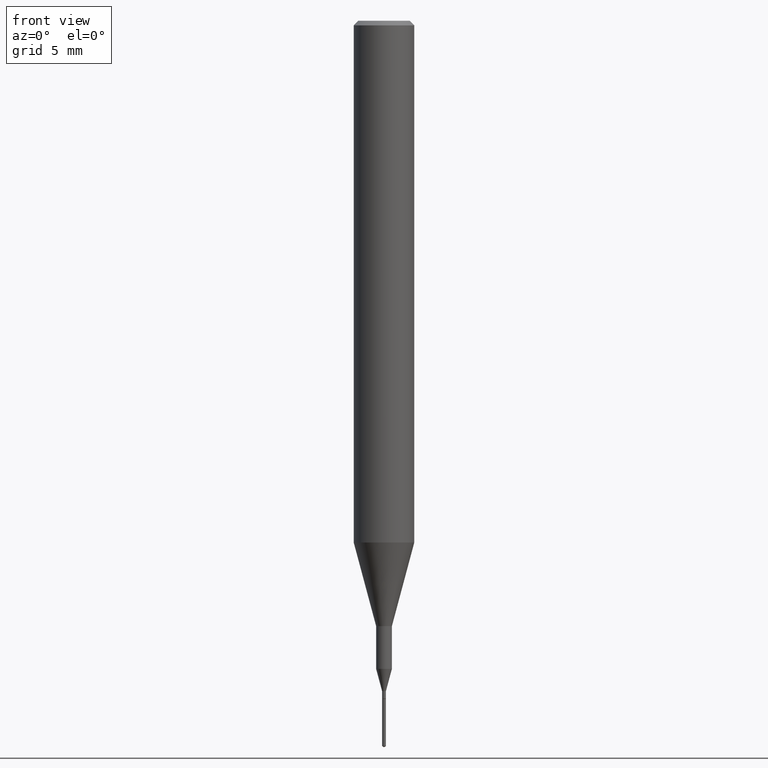
[diagram: clean part render]
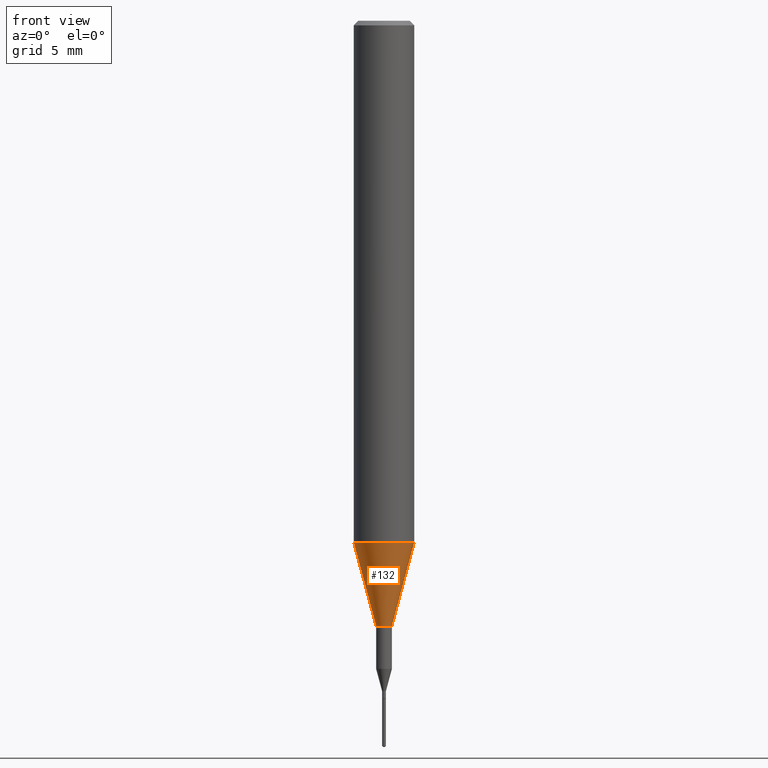
[diagram: same view with one face highlighted and labeled with its STEP entity id]
A machine part, front view. The second image highlights one B-rep face of the part: STEP entity #132.
In plain terms, the highlighted conical surface has half-angle 15 deg.
Its self-contained STEP definition (entity closure, byte-faithful):
#26 = EDGE_CURVE ( 'NONE', #530, #252, #317, .T. ) ;
#61 = ORIENTED_EDGE ( 'NONE', *, *, #300, .T. ) ;
#76 = LINE ( 'NONE', #577, #113 ) ;
#100 = CARTESIAN_POINT ( 'NONE',  ( 2.634730117954813298E-29, -3.761696332605275695E-15, -1.077392650149939346 ) ) ;
#103 = DIRECTION ( 'NONE',  ( -2.445468806185136597E-29, 3.491481338843145583E-15, 1.000000000000000000 ) ) ;
#109 = VERTEX_POINT ( 'NONE', #486 ) ;
#111 = CIRCLE ( 'NONE', #507, 0.06250000000000012490 ) ;
#113 = VECTOR ( 'NONE', #172, 39.37007874015747433 ) ;
#132 = ADVANCED_FACE ( 'NONE', ( #522 ), #281, .T. ) ;
#170 = CARTESIAN_POINT ( 'NONE',  ( 0.01624999999999999709, -4.477824817066334148E-15, -1.250000000000000000 ) ) ;
#172 = DIRECTION ( 'NONE',  ( -0.2588190451025214611, 5.211531920934551042E-15, 0.9659258262890682012 ) ) ;
#180 = LINE ( 'NONE', #238, #198 ) ;
#198 = VECTOR ( 'NONE', #505, 39.37007874015747433 ) ;
#199 = CARTESIAN_POINT ( 'NONE',  ( 2.634730117954813298E-29, -3.761696332605275695E-15, -1.077392650149939346 ) ) ;
#234 = DIRECTION ( 'NONE',  ( -2.445468806185136597E-29, 3.491481338843145583E-15, 1.000000000000000000 ) ) ;
#238 = CARTESIAN_POINT ( 'NONE',  ( 0.06250000000000012490, -4.198131499960668153E-15, -1.077392650149939346 ) ) ;
#246 = DIRECTION ( 'NONE',  ( 1.000000000000000000, -6.982962677686264344E-15, 0.000000000000000000 ) ) ;
#252 = VERTEX_POINT ( 'NONE', #170 ) ;
#261 = ORIENTED_EDGE ( 'NONE', *, *, #380, .F. ) ;
#281 = CONICAL_SURFACE ( 'NONE', #569, 0.06250000000000012490, 0.2617993877991501295 ) ;
#300 = EDGE_CURVE ( 'NONE', #252, #109, #180, .T. ) ;
#304 = DIRECTION ( 'NONE',  ( 1.000000000000000000, -6.982962677686264344E-15, 0.000000000000000000 ) ) ;
#310 = ORIENTED_EDGE ( 'NONE', *, *, #26, .T. ) ;
#317 = CIRCLE ( 'NONE', #499, 0.01624999999999999709 ) ;
#380 = EDGE_CURVE ( 'NONE', #427, #109, #111, .T. ) ;
#419 = CARTESIAN_POINT ( 'NONE',  ( -0.06250000000000012490, -3.317607122755211895E-15, -1.077392650149939346 ) ) ;
#427 = VERTEX_POINT ( 'NONE', #419 ) ;
#450 = EDGE_LOOP ( 'NONE', ( #496, #310, #61, #261 ) ) ;
#482 = CARTESIAN_POINT ( 'NONE',  ( -0.01624999999999999709, -4.403030004465308577E-15, -1.250000000000000000 ) ) ;
#486 = CARTESIAN_POINT ( 'NONE',  ( 0.06250000000000012490, -4.198131499960668153E-15, -1.077392650149939346 ) ) ;
#496 = ORIENTED_EDGE ( 'NONE', *, *, #524, .F. ) ;
#499 = AXIS2_PLACEMENT_3D ( 'NONE', #587, #234, #543 ) ;
#505 = DIRECTION ( 'NONE',  ( 0.2588190451025214611, 1.565188264969621573E-15, 0.9659258262890682012 ) ) ;
#507 = AXIS2_PLACEMENT_3D ( 'NONE', #100, #509, #246 ) ;
#509 = DIRECTION ( 'NONE',  ( -2.445468806185136597E-29, 3.491481338843145583E-15, 1.000000000000000000 ) ) ;
#522 = FACE_OUTER_BOUND ( 'NONE', #450, .T. ) ;
#524 = EDGE_CURVE ( 'NONE', #530, #427, #76, .T. ) ;
#530 = VERTEX_POINT ( 'NONE', #482 ) ;
#543 = DIRECTION ( 'NONE',  ( 1.000000000000000000, -6.982962677686288799E-15, 0.000000000000000000 ) ) ;
#569 = AXIS2_PLACEMENT_3D ( 'NONE', #199, #103, #304 ) ;
#577 = CARTESIAN_POINT ( 'NONE',  ( -0.06250000000000012490, -3.317607122755211895E-15, -1.077392650149939346 ) ) ;
#587 = CARTESIAN_POINT ( 'NONE',  ( 3.056836007731421306E-29, -4.364351673553932471E-15, -1.250000000000000000 ) ) ;